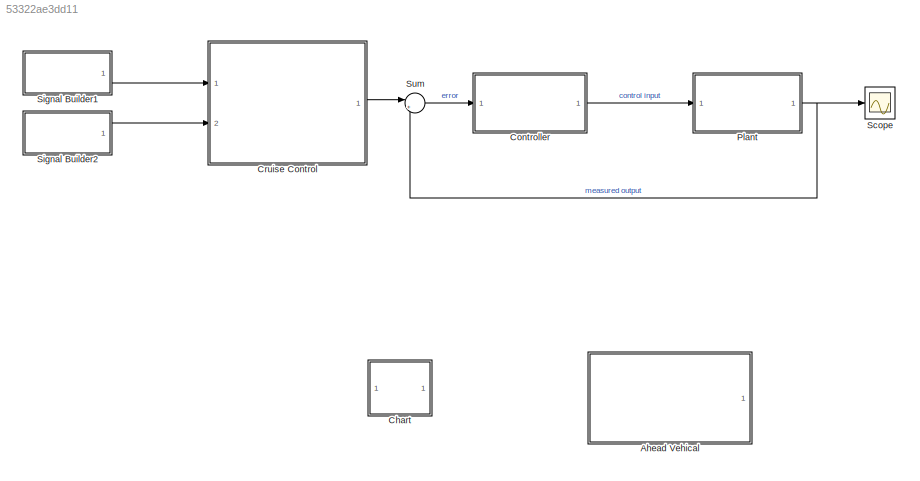
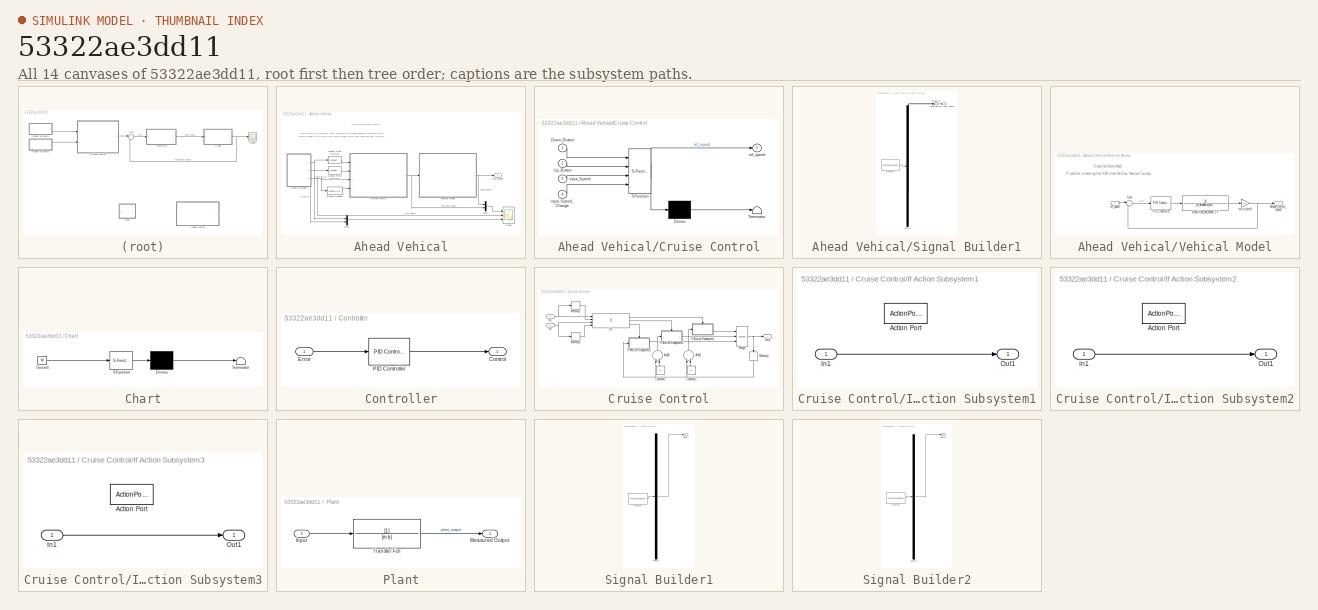
[diagram: thumbnail index - all 14 canvases of the model, root first then tree order]
MODEL slx_53322ae3dd11
KIND model
CONFIG AbsTol = auto
CONFIG EnableMultiTasking = on
CONFIG FixedStep = auto
CONFIG MaxStep = 0.01
CONFIG MinStep = auto
CONFIG RelTol = 1e-4
CONFIG SampleTimeConstraint = Unconstrained
CONFIG Solver = VariableStepAuto
CONFIG SolverName = VariableStepAuto
CONFIG StartTime = 0.0
CONFIG StopTime = 10
BLOCK [SubSystem] Ahead Vehical
  Ports = [0, 1]
  RequestExecContextInheritance = off
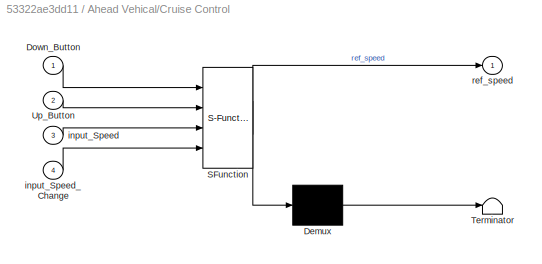
BLOCK [SubSystem] Ahead Vehical/Cruise Control
  ErrorFcn = Stateflow.Translate.translate
  PermitHierarchicalResolution = ExplicitOnly
  Ports = [4, 1]
  RequestExecContextInheritance = off
  SFBlockType = Chart
  TreatAsAtomicUnit = on
BLOCK [Demux] Ahead Vehical/Cruise Control/ Demux 
  Outputs = 1
  Ports = [1, 1]
BLOCK [S-Function] Ahead Vehical/Cruise Control/ SFunction 
  EnableBusSupport = on
  FunctionName = sf_sfun
  PortCounts = [4 2]
  Ports = [4, 2]
  SFcnIsStateOwnerBlock = off
  SFunctionDeploymentMode = off
  Tag = Stateflow S-Function Cruise_control 1
BLOCK [Terminator] Ahead Vehical/Cruise Control/ Terminator 
BLOCK [Inport] Ahead Vehical/Cruise Control/Down_Button
  IconDisplay = Port number
BLOCK [Inport] Ahead Vehical/Cruise Control/Up_Button
  IconDisplay = Port number
  Port = 2
BLOCK [Inport] Ahead Vehical/Cruise Control/input_Speed
  IconDisplay = Port number
  Port = 3
BLOCK [Inport] Ahead Vehical/Cruise Control/input_Speed_Change
  IconDisplay = Port number
  Port = 4
BLOCK [Outport] Ahead Vehical/Cruise Control/ref_speed
  IconDisplay = Port number
BLOCK [Reference] Ahead Vehical/Detect Change  REF=simulink/Logic and Bit
Operations/Detect
Change
  Ports = [1, 1]
  SourceBlock = simulink/Logic and Bit\nOperations/Detect\nChange
  SourceProductBaseCode = SL
  SourceProductName = Simulink
  SourceType = Detect Change
BLOCK [Reference] Ahead Vehical/Detect Rise Positive  REF=simulink/Logic and Bit
Operations/Detect Rise
Positive
  Ports = [1, 1]
  SourceBlock = simulink/Logic and Bit\nOperations/Detect Rise\nPositive
  SourceProductBaseCode = SL
  SourceProductName = Simulink
  SourceType = Detect Rise Positive
BLOCK [Reference] Ahead Vehical/Detect Rise Positive1  REF=simulink/Logic and Bit
Operations/Detect Rise
Positive
  Ports = [1, 1]
  SourceBlock = simulink/Logic and Bit\nOperations/Detect Rise\nPositive
  SourceProductBaseCode = SL
  SourceProductName = Simulink
  SourceType = Detect Rise Positive
BLOCK [Mux] Ahead Vehical/Mux
  DisplayOption = bar
  Inputs = 2
  Ports = [2, 1]
BLOCK [Mux] Ahead Vehical/Mux1
  DisplayOption = bar
  Inputs = 2
  Ports = [2, 1]
BLOCK [Scope] Ahead Vehical/Scope
  Floating = off
  NumInputPorts = 3
  Ports = [3]
  ScopeSpecificationString = Simulink.scopes.TimeScopeBlockCfg('CurrentConfiguration', extmgr.ConfigurationSet(extmgr.Configuration('Core','General UI',true),extmgr.Configuration('Core','Source UI',true),extmgr.Configuration('Sources','WiredSimulink',true,'DataLoggingVariableName','ScopeData1'),extmgr.Configuration('Visuals','Time Domain',true,'SerializedDisplays',{struct('MinYLimReal','-15.0099','MaxYLimReal','135.08906','YL...<+3018ch>
BLOCK [SubSystem] Ahead Vehical/Signal Builder1
  ClipboardFcn = sigbuilder_block('clipboard');
  CloseFcn = sigbuilder_block('close');
  ContinueFcn = sigbuilder_block('continue');
  CopyFcn = sigbuilder_block('copy');
  DeleteFcn = sigbuilder_block('delete');
  LoadFcn = sigbuilder_block('load');
  MaskHideContents = on
  ModelCloseFcn = sigbuilder_block('modelClose');
  NameChangeFcn = sigbuilder_block('namechange');
  OpenFcn = sigbuilder_block('open',[156 150.75 550.5 399.75 ]);
  PauseFcn = sigbuilder_block('pause');
  Ports = [0, 3]
  PreSaveFcn = sigbuilder_block('preSave');
  RequestExecContextInheritance = off
  StartFcn = sigbuilder_block('start');
  StopFcn = sigbuilder_block('stop');
  Tag = STV Subsys
BLOCK [Demux] Ahead Vehical/Signal Builder1/Demux
  Outputs = 3
  Ports = [1, 3]
  Tag = STV Demux
BLOCK [Outport] Ahead Vehical/Signal Builder1/Down_Button
  IconDisplay = Port number
  Tag = STV Outport
BLOCK [FromWorkspace] Ahead Vehical/Signal Builder1/FromWs
  SampleTime = 0
  Tag = STV FromWs
  VariableName = tuvar
  ZeroCross = on
BLOCK [Outport] Ahead Vehical/Signal Builder1/Input_Speed
  IconDisplay = Port number
  Port = 3
  Tag = STV Outport
BLOCK [Outport] Ahead Vehical/Signal Builder1/Up_Button
  IconDisplay = Port number
  Port = 2
  Tag = STV Outport
BLOCK [Outport] Ahead Vehical/Veh_Speed
  IconDisplay = Port number
BLOCK [SubSystem] Ahead Vehical/Vehical Model
  Ports = [1, 1]
  RequestExecContextInheritance = off
BLOCK [Outport] Ahead Vehical/Vehical Model/Ahead_Vehicle_Speed
  IconDisplay = Port number
BLOCK [Reference] Ahead Vehical/Vehical Model/PID Controller  REF=simulink/Continuous/PID Controller
  Ports = [1, 1]
  SourceBlock = simulink/Continuous/PID Controller
  SourceProductBaseCode = SL
  SourceProductName = Simulink
  SourceType = PID 1dof
BLOCK [Sum] Ahead Vehical/Vehical Model/Sum
  IconShape = round
  InputSameDT = off
  Inputs = |+-
  OutDataTypeStr = Inherit: Inherit via internal rule
  Ports = [2, 1]
  SaturateOnIntegerOverflow = off
BLOCK [Gain] Ahead Vehical/Vehical Model/m//s to km//h
  Gain = 3.6
  OutDataTypeStr = Inherit: Inherit via internal rule
  ParamDataTypeStr = Inherit: Inherit via internal rule
  SaturateOnIntegerOverflow = off
BLOCK [Inport] Ahead Vehical/Vehical Model/ref_speed
  IconDisplay = Port number
BLOCK [TransferFcn] Ahead Vehical/Vehical Model/simplified_veh_model_TF
  Denominator = [m_Ahead b_Ahead]
BLOCK [SubSystem] Chart
  ErrorFcn = Stateflow.Translate.translate
  PermitHierarchicalResolution = ExplicitOnly
  Ports = []
  RequestExecContextInheritance = off
  SFBlockType = Chart
  TreatAsAtomicUnit = on
BLOCK [Demux] Chart/ Demux 
  Outputs = 1
  Ports = [1, 1]
BLOCK [Ground] Chart/ Ground 
BLOCK [S-Function] Chart/ SFunction 
  EnableBusSupport = off
  FunctionName = sf_sfun
  PortCounts = [1 1]
  Ports = [1, 1]
  SFcnIsStateOwnerBlock = off
  SFunctionDeploymentMode = off
  Tag = Stateflow S-Function Cruise_control 3
BLOCK [Terminator] Chart/ Terminator 
BLOCK [SubSystem] Controller
  Ports = [1, 1]
  RequestExecContextInheritance = off
BLOCK [Outport] Controller/Control
  IconDisplay = Port number
BLOCK [Inport] Controller/Error
  IconDisplay = Port number
BLOCK [Reference] Controller/PID Controller  REF=simulink/Continuous/PID Controller
  Ports = [1, 1]
  SourceBlock = simulink/Continuous/PID Controller
  SourceProductBaseCode = SL
  SourceProductName = Simulink
  SourceType = PID 1dof
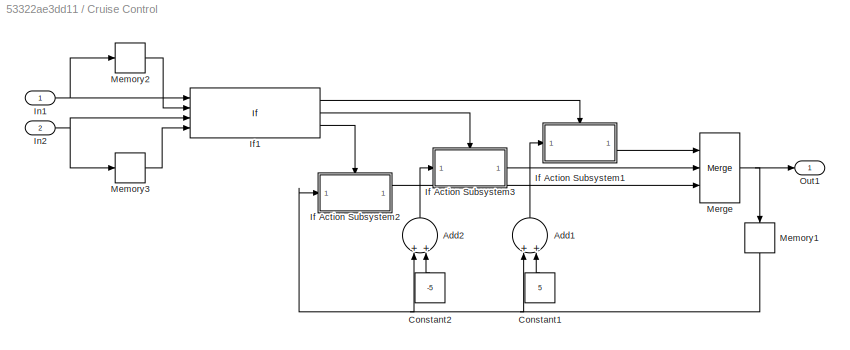
BLOCK [SubSystem] Cruise Control
  Ports = [2, 1]
  RequestExecContextInheritance = off
BLOCK [Sum] Cruise Control/Add1
  InputSameDT = off
  OutDataTypeStr = Inherit: Inherit via internal rule
  Ports = [2, 1]
  SaturateOnIntegerOverflow = off
BLOCK [Sum] Cruise Control/Add2
  InputSameDT = off
  OutDataTypeStr = Inherit: Inherit via internal rule
  Ports = [2, 1]
  SaturateOnIntegerOverflow = off
BLOCK [Constant] Cruise Control/Constant1
  Value = 5
BLOCK [Constant] Cruise Control/Constant2
  Value = -5
BLOCK [SubSystem] Cruise Control/If Action Subsystem1
  Ports = [1, 1, 0, 0, 0, 0, 0, 1]
  RequestExecContextInheritance = off
  TreatAsAtomicUnit = on
BLOCK [ActionPort] Cruise Control/If Action Subsystem1/Action Port
  ActionType = then
BLOCK [Inport] Cruise Control/If Action Subsystem1/In1
  IconDisplay = Port number
BLOCK [Outport] Cruise Control/If Action Subsystem1/Out1
  IconDisplay = Port number
BLOCK [SubSystem] Cruise Control/If Action Subsystem2
  Ports = [1, 1, 0, 0, 0, 0, 0, 1]
  RequestExecContextInheritance = off
  TreatAsAtomicUnit = on
BLOCK [ActionPort] Cruise Control/If Action Subsystem2/Action Port
  ActionType = else
BLOCK [Inport] Cruise Control/If Action Subsystem2/In1
  IconDisplay = Port number
BLOCK [Outport] Cruise Control/If Action Subsystem2/Out1
  IconDisplay = Port number
BLOCK [SubSystem] Cruise Control/If Action Subsystem3
  Ports = [1, 1, 0, 0, 0, 0, 0, 1]
  RequestExecContextInheritance = off
  TreatAsAtomicUnit = on
BLOCK [ActionPort] Cruise Control/If Action Subsystem3/Action Port
  ActionType = elseif
BLOCK [Inport] Cruise Control/If Action Subsystem3/In1
  IconDisplay = Port number
BLOCK [Outport] Cruise Control/If Action Subsystem3/Out1
  IconDisplay = Port number
BLOCK [If] Cruise Control/If1
  ElseIfExpressions = u3>0 & u3 ~= u4
  IfExpression = u1 > 0 & u1 ~= u2
  NumInputs = 4
  Ports = [4, 3]
BLOCK [Inport] Cruise Control/In1
  IconDisplay = Port number
BLOCK [Inport] Cruise Control/In2
  IconDisplay = Port number
  Port = 2
BLOCK [Memory] Cruise Control/Memory1
  InitialCondition = 100
BLOCK [Memory] Cruise Control/Memory2
BLOCK [Memory] Cruise Control/Memory3
BLOCK [Merge] Cruise Control/Merge
  Inputs = 3
  Ports = [3, 1]
BLOCK [Outport] Cruise Control/Out1
  IconDisplay = Port number
BLOCK [SubSystem] Plant
  Ports = [1, 1]
  RequestExecContextInheritance = off
BLOCK [Inport] Plant/Input
  IconDisplay = Port number
BLOCK [Outport] Plant/Measured Output
  IconDisplay = Port number
BLOCK [TransferFcn] Plant/Transfer Fcn
  Denominator = [m b]
BLOCK [Scope] Scope
  Floating = off
  NumInputPorts = 1
  Ports = [1]
  ScopeSpecificationString = Simulink.scopes.TimeScopeBlockCfg('CurrentConfiguration', extmgr.ConfigurationSet(extmgr.Configuration('Core','General UI',true),extmgr.Configuration('Core','Source UI',true),extmgr.Configuration('Sources','WiredSimulink',true),extmgr.Configuration('Visuals','Time Domain',true,'SerializedDisplays',{struct('MinYLimReal','-12.47229','MaxYLimReal','112.25058','YLabelReal','','MinYLimMag','0.00000','M...<+1363ch>
BLOCK [SubSystem] Signal Builder1
  ClipboardFcn = sigbuilder_block('clipboard');
  CloseFcn = sigbuilder_block('close');
  ContinueFcn = sigbuilder_block('continue');
  CopyFcn = sigbuilder_block('copy');
  DeleteFcn = sigbuilder_block('delete');
  LoadFcn = sigbuilder_block('load');
  MaskHideContents = on
  ModelCloseFcn = sigbuilder_block('modelClose');
  NameChangeFcn = sigbuilder_block('namechange');
  OpenFcn = sigbuilder_block('open',[437.6 199.2 550.4 400 ]);
  PauseFcn = sigbuilder_block('pause');
  Ports = [0, 1]
  PreSaveFcn = sigbuilder_block('preSave');
  RequestExecContextInheritance = off
  StartFcn = sigbuilder_block('start');
  StopFcn = sigbuilder_block('stop');
  Tag = STV Subsys
BLOCK [Demux] Signal Builder1/Demux
  Outputs = 1
  Ports = [1, 1]
  Tag = STV Demux
BLOCK [FromWorkspace] Signal Builder1/FromWs
  SampleTime = 0
  Tag = STV FromWs
  VariableName = tuvar
  ZeroCross = on
BLOCK [Outport] Signal Builder1/Signal 1
  IconDisplay = Port number
  Tag = STV Outport
BLOCK [SubSystem] Signal Builder2
  ClipboardFcn = sigbuilder_block('clipboard');
  CloseFcn = sigbuilder_block('close');
  ContinueFcn = sigbuilder_block('continue');
  CopyFcn = sigbuilder_block('copy');
  DeleteFcn = sigbuilder_block('delete');
  LoadFcn = sigbuilder_block('load');
  MaskHideContents = on
  ModelCloseFcn = sigbuilder_block('modelClose');
  NameChangeFcn = sigbuilder_block('namechange');
  OpenFcn = sigbuilder_block('open',[437.6 199.2 550.4 400 ]);
  PauseFcn = sigbuilder_block('pause');
  Ports = [0, 1]
  PreSaveFcn = sigbuilder_block('preSave');
  RequestExecContextInheritance = off
  StartFcn = sigbuilder_block('start');
  StopFcn = sigbuilder_block('stop');
  Tag = STV Subsys
BLOCK [Demux] Signal Builder2/Demux
  Outputs = 1
  Ports = [1, 1]
  Tag = STV Demux
BLOCK [FromWorkspace] Signal Builder2/FromWs
  SampleTime = 0
  Tag = STV FromWs
  VariableName = tuvar
  ZeroCross = on
BLOCK [Outport] Signal Builder2/Signal 1
  IconDisplay = Port number
  Tag = STV Outport
BLOCK [Sum] Sum
  IconShape = round
  InputSameDT = off
  Inputs = |+-
  OutDataTypeStr = Inherit: Inherit via internal rule
  Ports = [2, 1]
  SaturateOnIntegerOverflow = off
ANNOTATION Ahead Vehical: - Cruise Control Stateflow Chart provides the refrence speed to the vehicle model to actuate. - Vehicle Model is a Simplified Vehicle Model which uses Newton's Law to calculate speed.
ANNOTATION Ahead Vehical: Cruise Controlled Vehicle
ANNOTATION Ahead Vehical/Vehical Model: - PI controller is tuned to go from 0-100 in less than 15 sec. Maximum Force Applied by the controller is limited to 4200 Nm.
ANNOTATION Ahead Vehical/Vehical Model: Simplified Vehicle Model
NET Ahead Vehical/Cruise Control:1 -> Ahead Vehical/Mux:2, Ahead Vehical/Vehical Model:1
LINE Ahead Vehical/Detect Change:1 -> Ahead Vehical/Cruise Control:4
LINE Ahead Vehical/Detect Rise Positive1:1 -> Ahead Vehical/Cruise Control:2
LINE Ahead Vehical/Detect Rise Positive:1 -> Ahead Vehical/Cruise Control:1
LINE Ahead Vehical/Mux1:1 -> Ahead Vehical/Scope:3
LINE Ahead Vehical/Mux:1 -> Ahead Vehical/Scope:1
NET Ahead Vehical/Signal Builder1:1 -> Ahead Vehical/Detect Rise Positive:1, Ahead Vehical/Mux1:1
NET Ahead Vehical/Signal Builder1:2 -> Ahead Vehical/Detect Rise Positive1:1, Ahead Vehical/Mux1:2
NET Ahead Vehical/Signal Builder1:3 -> Ahead Vehical/Cruise Control:3, Ahead Vehical/Detect Change:1, Ahead Vehical/Scope:2
LINE Ahead Vehical/Vehical Model/PID Controller:1 -> Ahead Vehical/Vehical Model/simplified_veh_model_TF:1
LINE Ahead Vehical/Vehical Model/Sum:1 -> Ahead Vehical/Vehical Model/PID Controller:1
NET Ahead Vehical/Vehical Model/m//s to km//h:1 -> Ahead Vehical/Vehical Model/Ahead_Vehicle_Speed:1, Ahead Vehical/Vehical Model/Sum:2
LINE Ahead Vehical/Vehical Model/ref_speed:1 -> Ahead Vehical/Vehical Model/Sum:1
LINE Ahead Vehical/Vehical Model/simplified_veh_model_TF:1 -> Ahead Vehical/Vehical Model/m//s to km//h:1
NET Ahead Vehical/Vehical Model:1 -> Ahead Vehical/Mux:1, Ahead Vehical/Veh_Speed:1
LINE Controller/Error:1 -> Controller/PID Controller:1
LINE Controller/PID Controller:1 -> Controller/Control:1
LINE Controller:1 -> Plant:1
LINE Cruise Control/Add1:1 -> Cruise Control/If Action Subsystem1:1
LINE Cruise Control/Add2:1 -> Cruise Control/If Action Subsystem3:1
LINE Cruise Control/Constant1:1 -> Cruise Control/Add1:2
LINE Cruise Control/Constant2:1 -> Cruise Control/Add2:2
LINE Cruise Control/If Action Subsystem1/In1:1 -> Cruise Control/If Action Subsystem1/Out1:1
LINE Cruise Control/If Action Subsystem1:1 -> Cruise Control/Merge:1
LINE Cruise Control/If Action Subsystem2/In1:1 -> Cruise Control/If Action Subsystem2/Out1:1
LINE Cruise Control/If Action Subsystem2:1 -> Cruise Control/Merge:3
LINE Cruise Control/If Action Subsystem3/In1:1 -> Cruise Control/If Action Subsystem3/Out1:1
LINE Cruise Control/If Action Subsystem3:1 -> Cruise Control/Merge:2
LINE Cruise Control/If1:1 -> Cruise Control/If Action Subsystem1:ifaction
LINE Cruise Control/If1:2 -> Cruise Control/If Action Subsystem3:ifaction
LINE Cruise Control/If1:3 -> Cruise Control/If Action Subsystem2:ifaction
NET Cruise Control/In1:1 -> Cruise Control/If1:1, Cruise Control/Memory2:1
NET Cruise Control/In2:1 -> Cruise Control/If1:3, Cruise Control/Memory3:1
NET Cruise Control/Memory1:1 -> Cruise Control/Add1:1, Cruise Control/Add2:1, Cruise Control/If Action Subsystem2:1
LINE Cruise Control/Memory2:1 -> Cruise Control/If1:2
LINE Cruise Control/Memory3:1 -> Cruise Control/If1:4
NET Cruise Control/Merge:1 -> Cruise Control/Memory1:1, Cruise Control/Out1:1
LINE Cruise Control:1 -> Sum:1
LINE Plant/Input:1 -> Plant/Transfer Fcn:1
LINE Plant/Transfer Fcn:1 -> Plant/Measured Output:1
NET Plant:1 -> Scope:1, Sum:2
LINE Signal Builder1:1 -> Cruise Control:1
LINE Signal Builder2:1 -> Cruise Control:2
LINE Sum:1 -> Controller:1
note: NET lines group one-source signal fan-out (src -> all destinations, sorted); 1:1 wires keep LINE
CHART Ahead Vehical/Cruise Control states=6 transitions=7
  STATE_LABEL '<!DOCTYPE HTML PUBLIC "-//W3C//DTD HTML 4.0//EN" "http://www.w3.org/TR/REC-html40/strict.dtd">\n<html><head><meta name="qrichtext" content="1" /><style type="text/css">\np, li { white-space: pre-wrap; }\n</style></head><body style=" font-family:\'Helvetica\'; font-size:12px; font-weight:400; font-style:normal;">\n<p style=" margin-top:0px; margin-bottom:0px; margin-left:0px; margin-right:0px; -qt-block-...<+130ch>'
  STATE_LABEL '<!DOCTYPE HTML PUBLIC "-//W3C//DTD HTML 4.0//EN" "http://www.w3.org/TR/REC-html40/strict.dtd">\n<html><head><meta name="qrichtext" content="1" /><style type="text/css">\np, li { white-space: pre-wrap; }\n</style></head><body style=" font-family:\'Helvetica\'; font-size:8px; font-weight:400; font-style:normal;">\n<table border="1" style=" border-color:#000000; border-style:solid; margin-top:0px; margin-b...<+4494ch>'
  STATE_LABEL 'UP_BUTTON_PRESSED\nref_speed = ref_speed + 5;'
  STATE_LABEL 'DOWN_BUTTON_PRESSED\nref_speed = ref_speed - 5;'
  STATE_LABEL 'CRUISE_ONTROL_ON\nref_speed = ref_speed;'
  STATE_LABEL 'REFRESH_TO_REFRENCE\nref_speed = input_Speed;'
CHART Chart states=0 transitions=1
